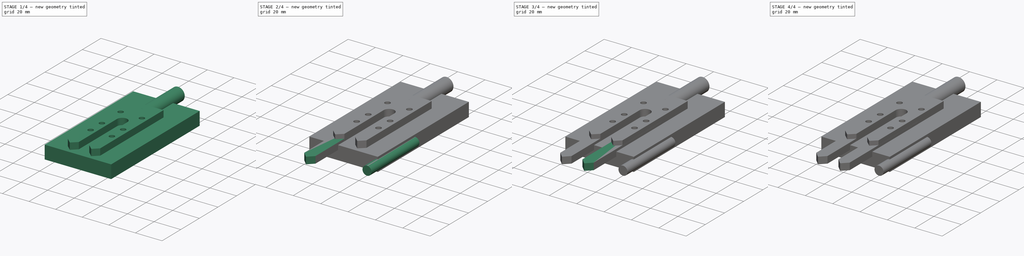
[diagram: build sequence overview — one tinted view per stage of 4, left to right]
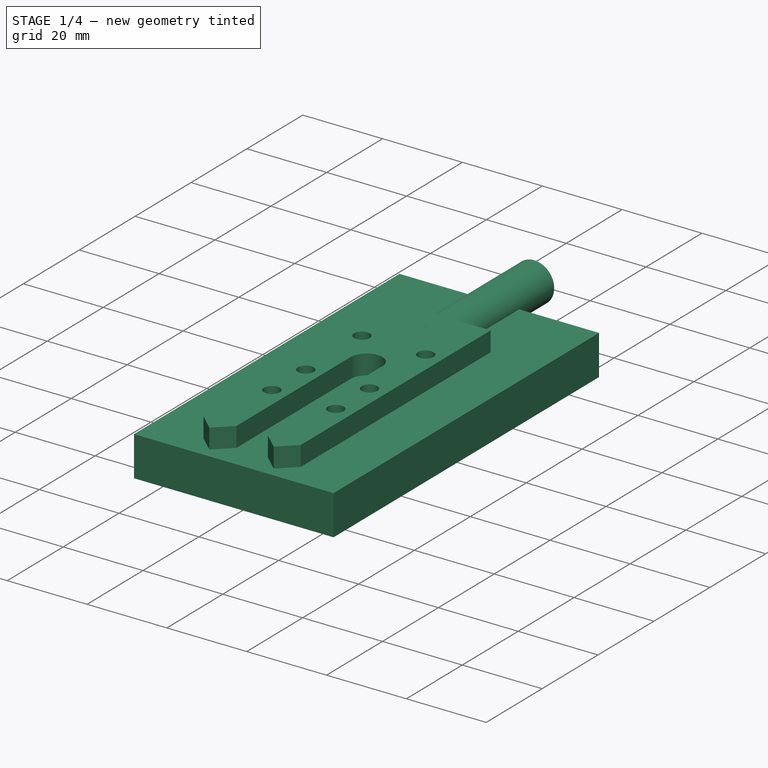
[diagram: stage 1 of 4 — iso view after this stage's code; geometry added in this stage tinted green]
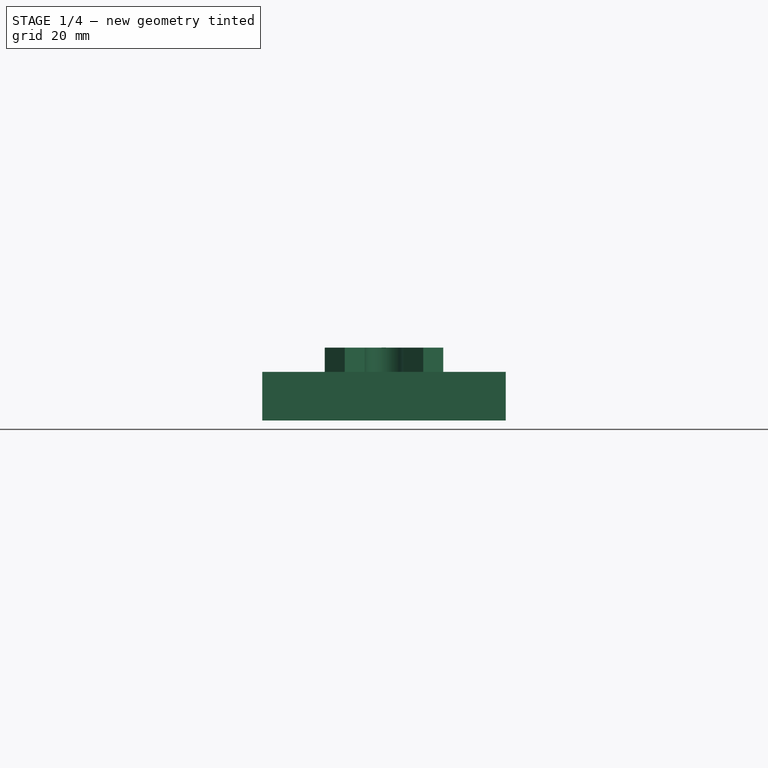
[diagram: stage 1 of 4 — front view after this stage's code; geometry added in this stage tinted green]
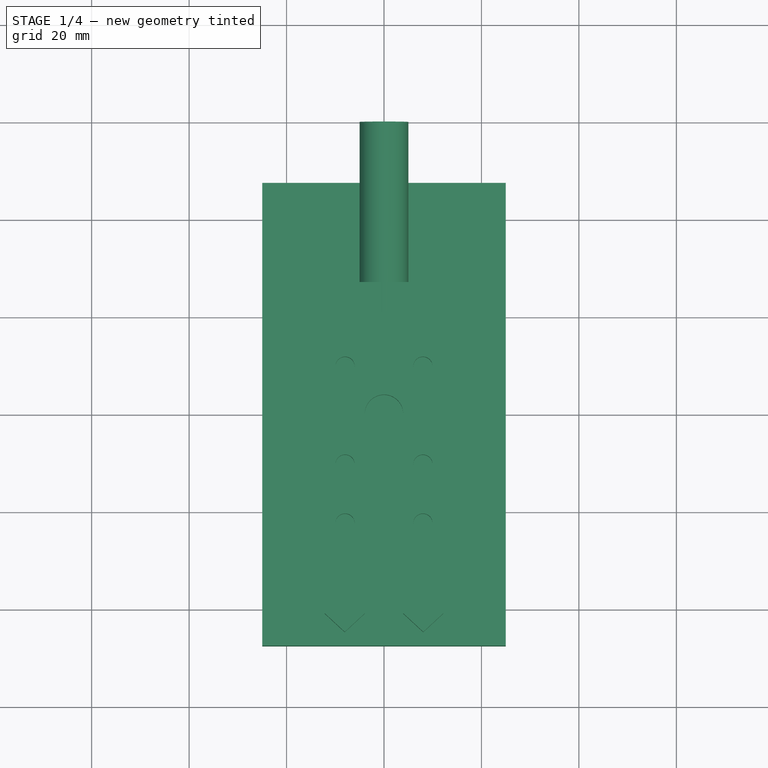
[diagram: stage 1 of 4 — top view after this stage's code; geometry added in this stage tinted green]
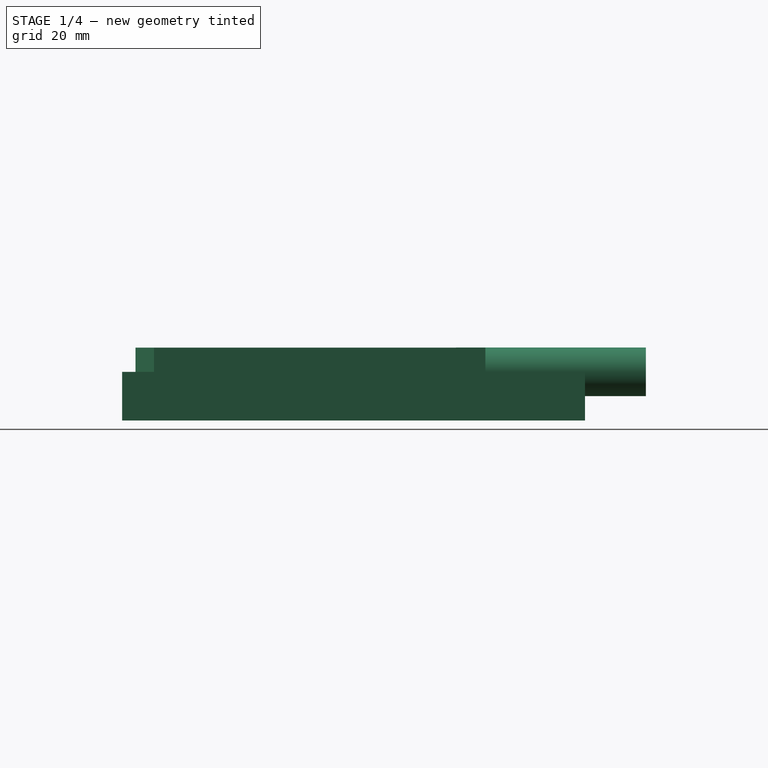
[diagram: stage 1 of 4 — right view after this stage's code; geometry added in this stage tinted green]
FCSTD DOCUMENT  (FreeCAD 0.16R4928 (Git))
Label: soil_sensor_case
License: CreativeCommons Attribution-ShareAlike
LicenseURL: http://creativecommons.org/licenses/by-sa/4.0/
objects: Sketcher::SketchObject×6, PartDesign::Pad×3, PartDesign::Pocket×3, Part::Cylinder×2, Part::Box×1, PartDesign::Chamfer×1, Part::Mirroring×1
note: 23 computed .brp shape members not serialized (recipe doc carries the construction recipe); baked Part::Feature solids carry a one-line shape summary decoded from their .brp

FEATURE [PartDesign::Pad] Pad001
  Length = 10
  Length2 = 100
  Midplane = true
  Sketch = -> Sketch004
  Type = 0
FEATURE [Part::Cylinder] Cylinder001
  Angle = 360
  Height = 39
  Placement = pos=(0,60,5) rot=(1,0,0;1.5708rad)
  Radius = 5
FEATURE [Sketcher::SketchObject] Sketch005
  sketch-geometry (22):
    g0: LineSegment StartX=-12.165 StartY=27.05 StartZ=0 EndX=12.165 EndY=27.05 EndZ=0
    g1: LineSegment StartX=12.165 StartY=27.05 StartZ=0 EndX=12.165 EndY=-40.95 EndZ=0
    g2: LineSegment StartX=12.165 StartY=-40.95 StartZ=0 EndX=8.0575 EndY=-44.7564 EndZ=0
    g3: LineSegment StartX=8.0575 StartY=-44.7564 StartZ=0 EndX=3.95 EndY=-40.95 EndZ=0
    g4: LineSegment StartX=3.95 StartY=-40.95 StartZ=0 EndX=3.95 EndY=-1.41466e-05 EndZ=0
    g5: LineSegment [constr] StartX=3.95 StartY=-1.41466e-05 StartZ=0 EndX=-3.95 EndY=-1.41466e-05 EndZ=0
    g6: LineSegment StartX=-3.95 StartY=-1.41466e-05 StartZ=0 EndX=-3.95 EndY=-40.95 EndZ=0
    g7: LineSegment StartX=-3.95 StartY=-40.95 StartZ=0 EndX=-8.0575 EndY=-44.7564 EndZ=0
    g8: LineSegment StartX=-8.0575 StartY=-44.7564 StartZ=0 EndX=-12.165 EndY=-40.95 EndZ=0
    g9: LineSegment StartX=-12.165 StartY=-40.95 StartZ=0 EndX=-12.165 EndY=27.05 EndZ=0
    g10: ArcOfCircle CenterX=0 CenterY=0 CenterZ=0 NormalX=0 NormalY=0 NormalZ=1 Radius=3.95 StartAngle=6.28318 EndAngle=9.42478
    g11: GeomPoint [constr] X=0 Y=-3.95 Z=0
    g12: LineSegment [constr] StartX=12.165 StartY=-40.95 StartZ=0 EndX=3.95 EndY=-40.95 EndZ=0
    g13: LineSegment [constr] StartX=8.0575 StartY=-44.7564 StartZ=0 EndX=8.0575 EndY=-40.95 EndZ=0
    g14: LineSegment [constr] StartX=-3.95 StartY=-40.95 StartZ=0 EndX=-12.165 EndY=-40.95 EndZ=0
    g15: LineSegment [constr] StartX=-8.0575 StartY=-44.7564 StartZ=0 EndX=-8.0575 EndY=-40.95 EndZ=0
    g16: Circle CenterX=-7.99 CenterY=9.765 CenterZ=0 NormalX=0 NormalY=0 NormalZ=1 Radius=1.975
    g17: Circle CenterX=7.99 CenterY=9.765 CenterZ=0 NormalX=0 NormalY=0 NormalZ=1 Radius=1.975
    g18: Circle CenterX=-7.99 CenterY=-10.335 CenterZ=0 NormalX=0 NormalY=0 NormalZ=1 Radius=1.975
    g19: Circle CenterX=7.99 CenterY=-10.335 CenterZ=0 NormalX=0 NormalY=0 NormalZ=1 Radius=1.975
    g20: Circle CenterX=-7.99 CenterY=-22.435 CenterZ=0 NormalX=0 NormalY=0 NormalZ=1 Radius=1.975
    g21: Circle CenterX=7.99 CenterY=-22.435 CenterZ=0 NormalX=0 NormalY=0 NormalZ=1 Radius=1.975
  constraints (61):
    c: Coincident(g0,g1)
    c: Vertical(g1)
    c: Coincident(g1,g2)
    c: Coincident(g2,g3)
    c: Coincident(g3,g4)
    c: Coincident(g4,g5)
    c: Coincident(g5,g6)
    c: Vertical(g6)
    c: Coincident(g6,g7)
    c: Coincident(g7,g8)
    c: Coincident(g8,g9)
    c: Vertical(g9)
    c: Coincident(g9,g0)
    c: Vertical(g4)
    c: Symmetric(g0,g0,g-2)
    c: Symmetric(g4,g5,g-2)
    c: Equal(g9,g1)
    c: Equal(g4,g6)
    c: Equal(g8,g7)
    c: DistanceX(g0) = 24.33
    c: Coincident(g10,g5)
    c: Coincident(g10,g4)
    c: PointOnObject(g11,g10)
    c: PointOnObject(g11,g-2)
    c: DistanceY(g11,g0) = 31
    c: Radius(g10) = 3.95
    c: DistanceY(g1) = -68
    c: Coincident(g12,g1)
    c: Coincident(g12,g3)
    c: Horizontal(g12)
    c: Coincident(g13,g2)
    c: PointOnObject(g13,g12)
    c: Vertical(g13)
    c: Symmetric(g3,g1,g13)
    c: Equal(g3,g2)
    c: Equal(g2,g7)
    c: Coincident(g14,g6)
    c: Horizontal(g14)
    c: Coincident(g15,g7)
    c: PointOnObject(g15,g14)
    c: Vertical(g15)
    c: Symmetric(g8,g6,g15)
    c: Distance(g2) = 5.6
    c: Coincident(g14,g8)
    c: Coincident(g-1,g10)
    c: Symmetric(g17,g16,g-2)
    c: Radius(g16) = 1.975
    c: Equal(g16,g17)
    c: DistanceX(g17,g0) = 4.175
    c: DistanceY(g0,g16) = -17.285
    c: Equal(g20,g21)
    c: Equal(g21,g18)
    c: Equal(g18,g19)
    c: Equal(g19,g16)
    c: Symmetric(g19,g18,g-2)
    c: Symmetric(g21,g20,g-2)
    c: DistanceX(g18,g19) = 15.98
    c: DistanceX(g21,g20) = -15.98
    c: DistanceY(g16,g18) = -20.1
    c: DistanceY(g18,g20) = -12.1
    c: DistanceX(g5) = -7.9
FEATURE [PartDesign::Pad] Pad002
  Length = 9.96
  Length2 = 100
  Sketch = -> Sketch005
  Type = 0
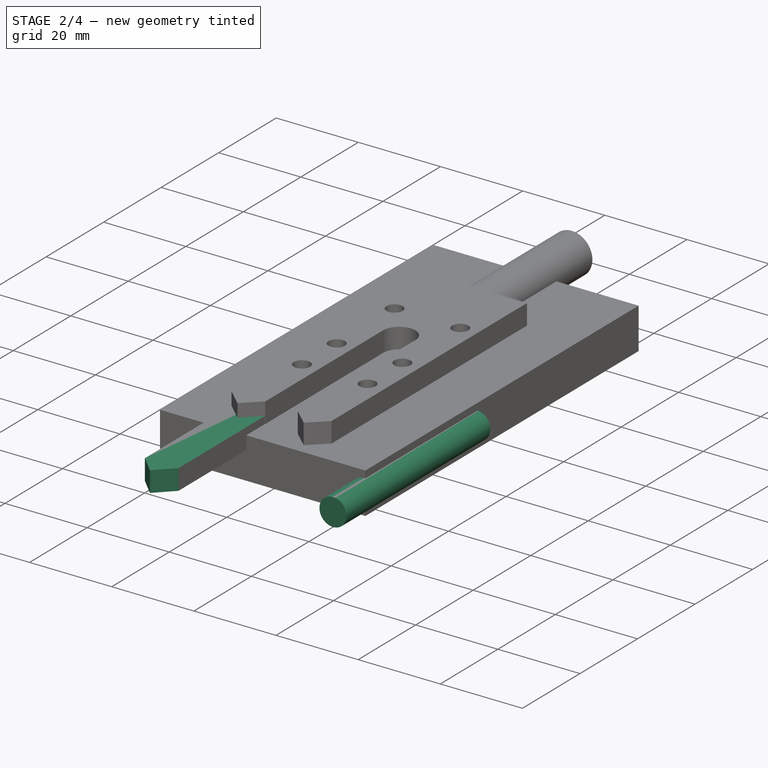
[diagram: stage 2 of 4 — iso view after this stage's code; geometry added in this stage tinted green]
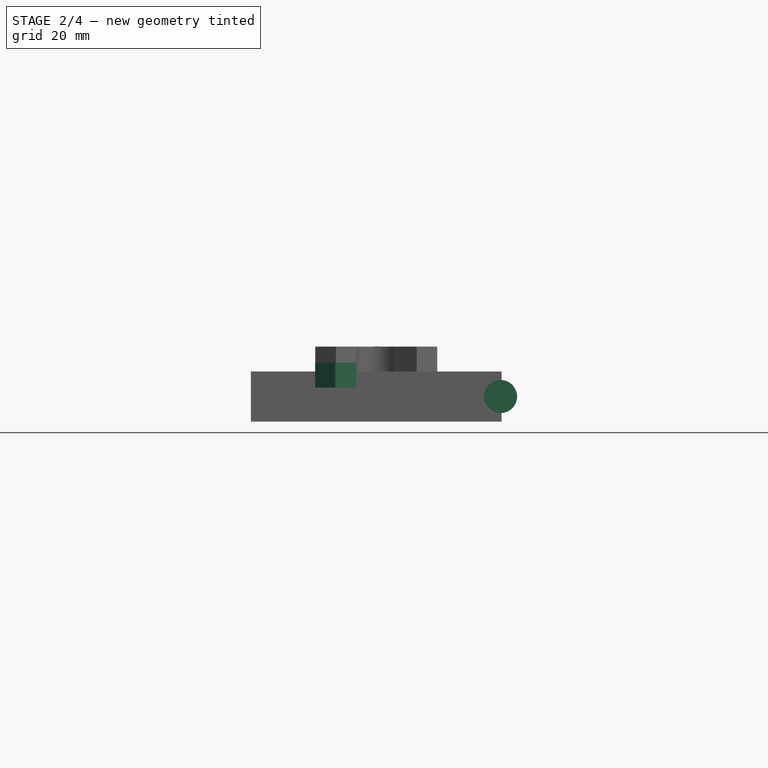
[diagram: stage 2 of 4 — front view after this stage's code; geometry added in this stage tinted green]
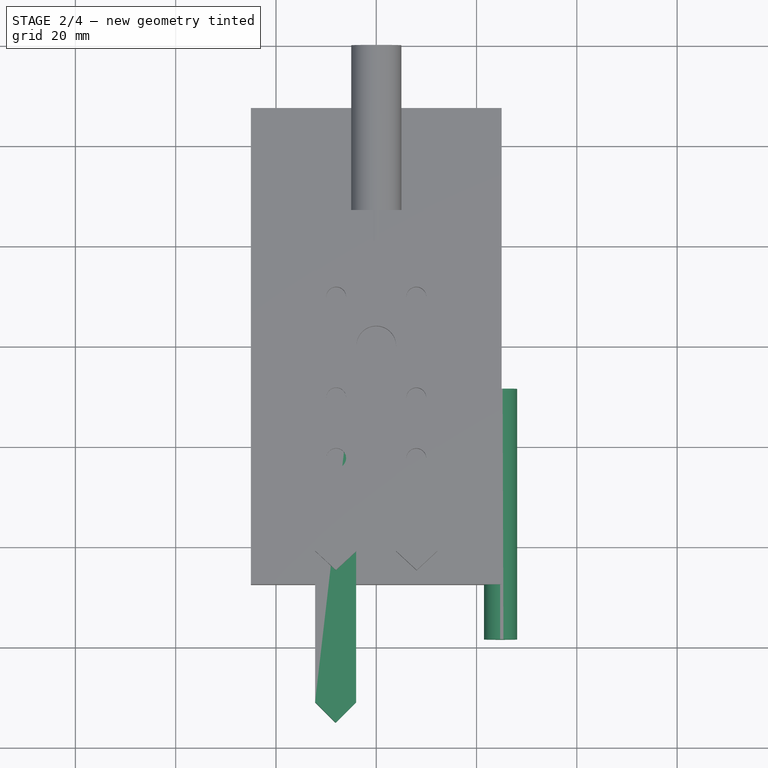
[diagram: stage 2 of 4 — top view after this stage's code; geometry added in this stage tinted green]
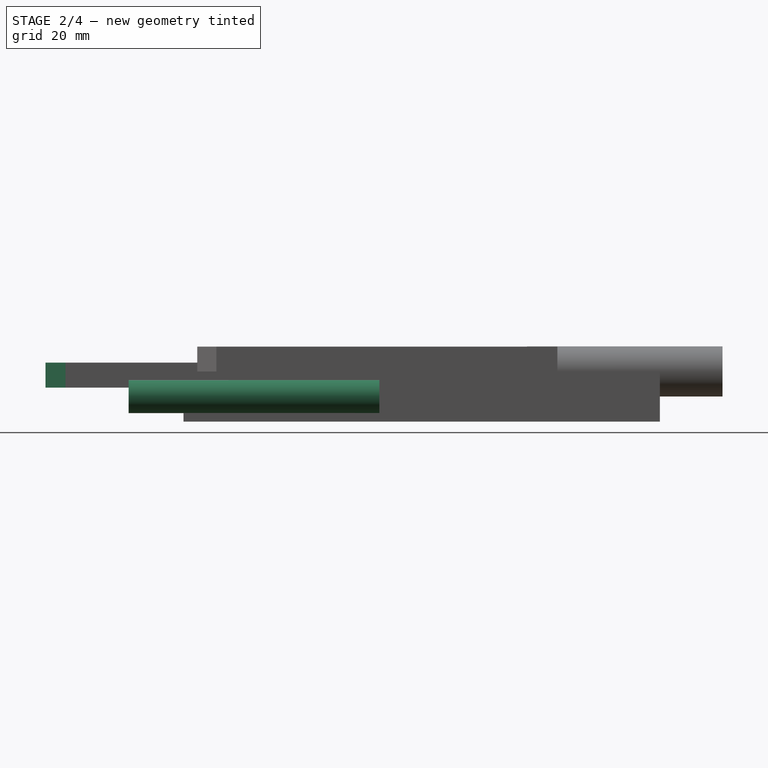
[diagram: stage 2 of 4 — right view after this stage's code; geometry added in this stage tinted green]
FEATURE [Part::Box] Box  label="Cube"
  Height = 5
  Length = 8.2
  Placement = pos=(-12.2039,-75.0377,1.77091) rot=(0,0,1;0rad)
  Width = 75
FEATURE [PartDesign::Chamfer] Chamfer
  Base = -> Box [Edge5,Edge1]
  Placement = pos=(-12.2039,-75.0377,1.77091) rot=(0,0,1;0rad)
  Size = 4
FEATURE [Sketcher::SketchObject] Sketch004
  sketch-geometry (4):
    g0: LineSegment StartX=-25 StartY=47.5 StartZ=0 EndX=25 EndY=47.5 EndZ=0
    g1: LineSegment StartX=25 StartY=47.5 StartZ=0 EndX=25 EndY=-47.5 EndZ=0
    g2: LineSegment StartX=25 StartY=-47.5 StartZ=0 EndX=-25 EndY=-47.5 EndZ=0
    g3: LineSegment StartX=-25 StartY=-47.5 StartZ=0 EndX=-25 EndY=47.5 EndZ=0
  constraints (11):
    c: Coincident(g0,g1)
    c: Coincident(g1,g2)
    c: Coincident(g2,g3)
    c: Coincident(g3,g0)
    c: Horizontal(g0)
    c: Horizontal(g2)
    c: Vertical(g1)
    c: Vertical(g3)
    c: Symmetric(g1,g0,g-1)
    c: DistanceY(g1) = -95
    c: DistanceX(g0) = 50
FEATURE [Part::Cylinder] Cylinder
  Angle = 360
  Height = 50
  Placement = pos=(24.7863,-8.4453,3.51125e-06) rot=(1,0,0;1.5708rad)
  Radius = 3.3
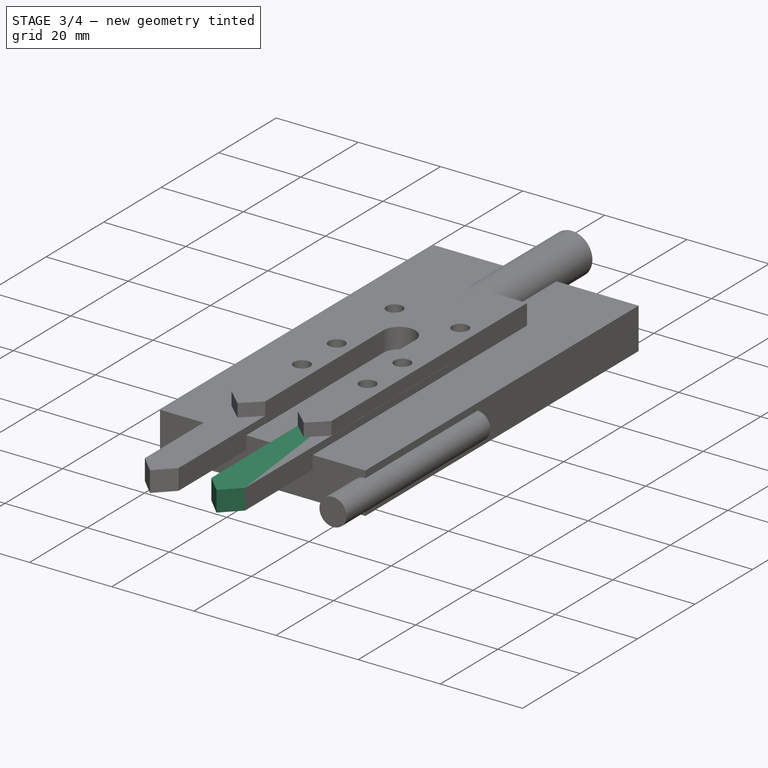
[diagram: stage 3 of 4 — iso view after this stage's code; geometry added in this stage tinted green]
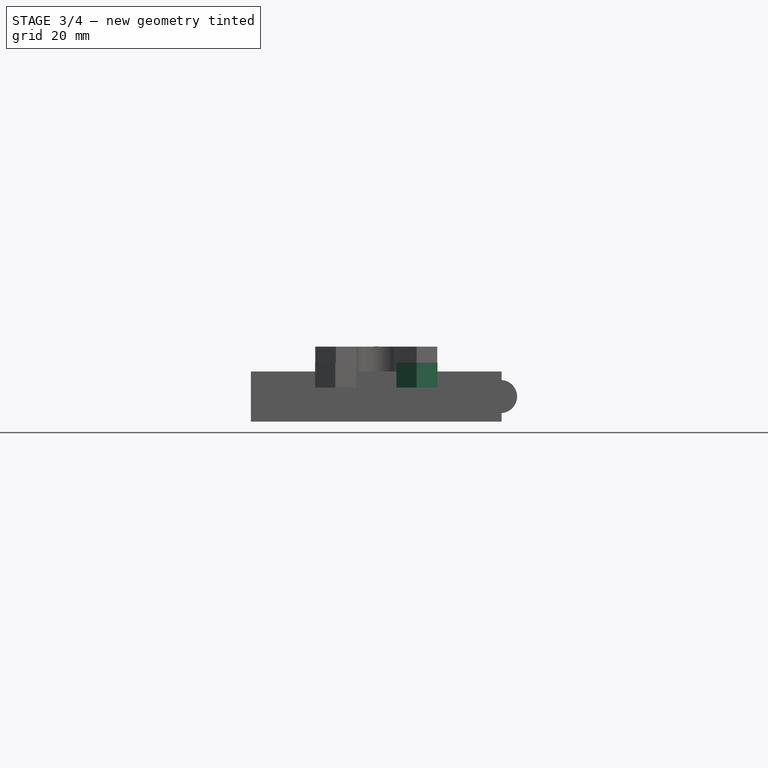
[diagram: stage 3 of 4 — front view after this stage's code; geometry added in this stage tinted green]
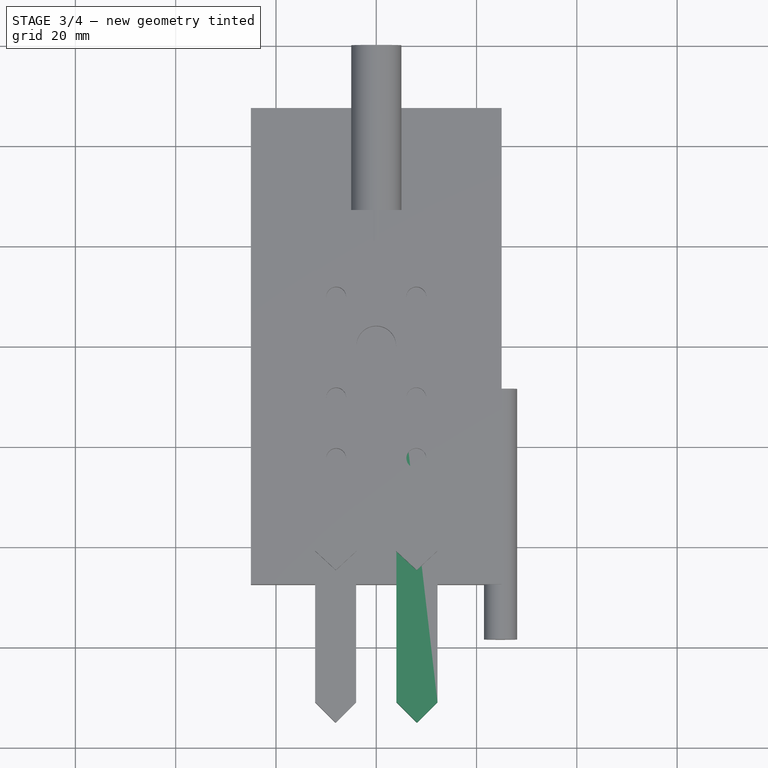
[diagram: stage 3 of 4 — top view after this stage's code; geometry added in this stage tinted green]
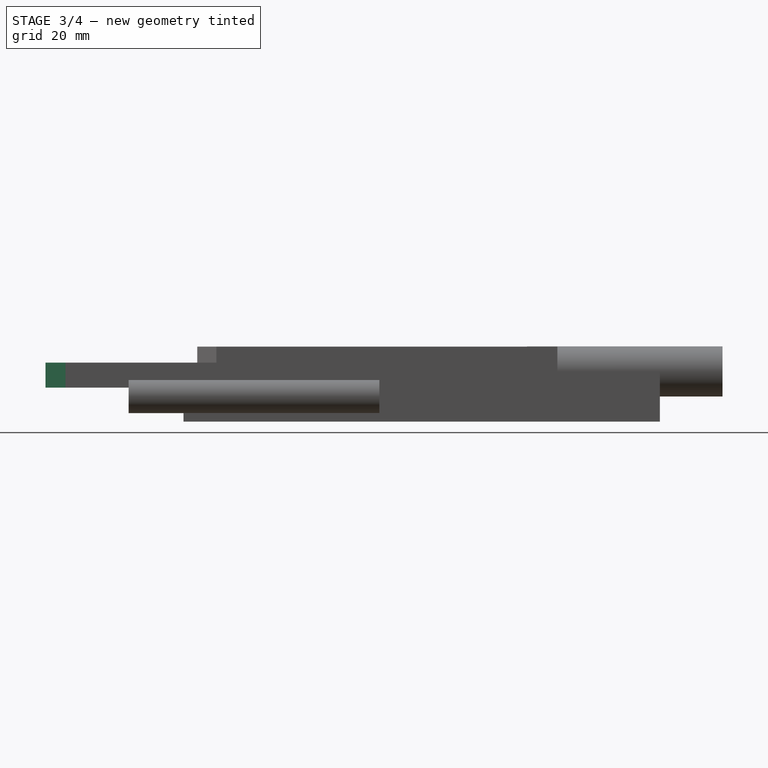
[diagram: stage 3 of 4 — right view after this stage's code; geometry added in this stage tinted green]
FEATURE [Part::Mirroring] Part__Mirroring  label="Chamfer (Mirror #1)"
  Base = (0,0,0)
  Normal = (1,0,0)
  Source = -> Chamfer
FEATURE [Sketcher::SketchObject] Sketch003
  Placement = pos=(-12.2039,-75.0377,1.77091) rot=(1,0,0;3.14159rad)
  Support = -> Chamfer [Face5]
  sketch-geometry (3):
    g0: Circle CenterX=4.2 CenterY=-52.6 CenterZ=0 NormalX=0 NormalY=0 NormalZ=1 Radius=2
    g1: Circle CenterX=4.2 CenterY=-64.7 CenterZ=0 NormalX=0 NormalY=0 NormalZ=1 Radius=2
    g2: LineSegment [constr] StartX=4.2 StartY=-64.7 StartZ=0 EndX=4.2 EndY=-52.6 EndZ=0
  constraints (8):
    c: Coincident(g2,g1)
    c: Coincident(g2,g0)
    c: Vertical(g2)
    c: Equal(g1,g0)
    c: Radius(g0) = 2
    c: DistanceY(g2) = 12.1
    c: DistanceX(g1) = 4.2
    c: DistanceY(g1) = -64.7
FEATURE [PartDesign::Pocket] Pocket002
  Length = 5
  Placement = pos=(-12.2039,-75.0377,1.77091) rot=(0,0,1;0rad)
  Sketch = -> Sketch003
  Type = 0
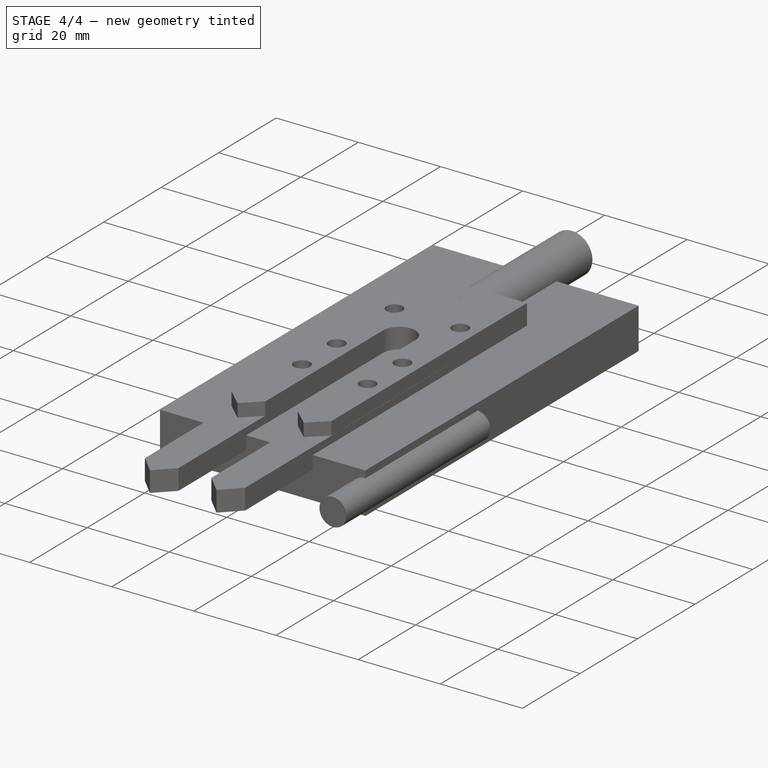
[diagram: stage 4 of 4 — iso view after this stage's code; geometry added in this stage tinted green]
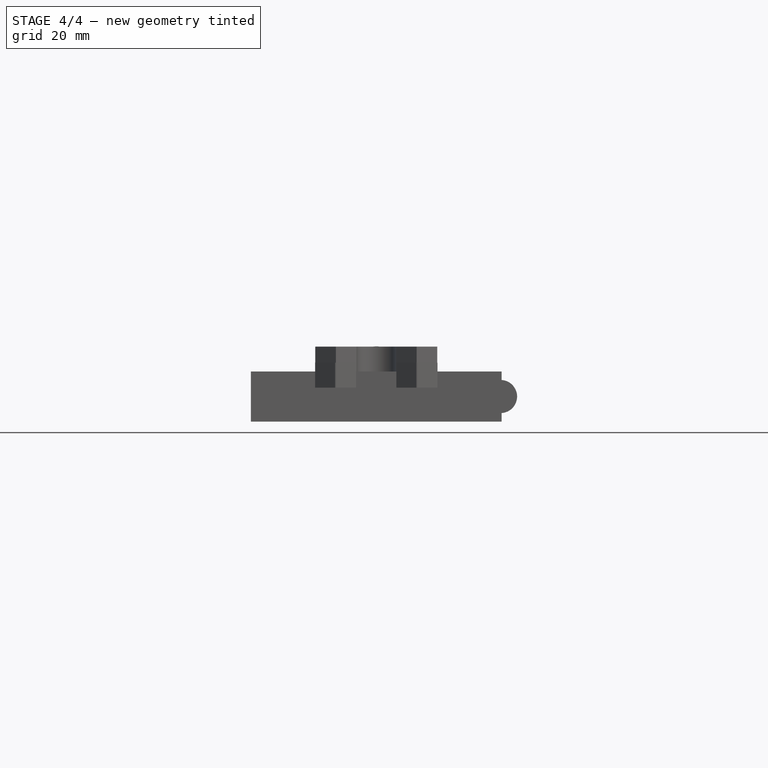
[diagram: stage 4 of 4 — front view after this stage's code; geometry added in this stage tinted green]
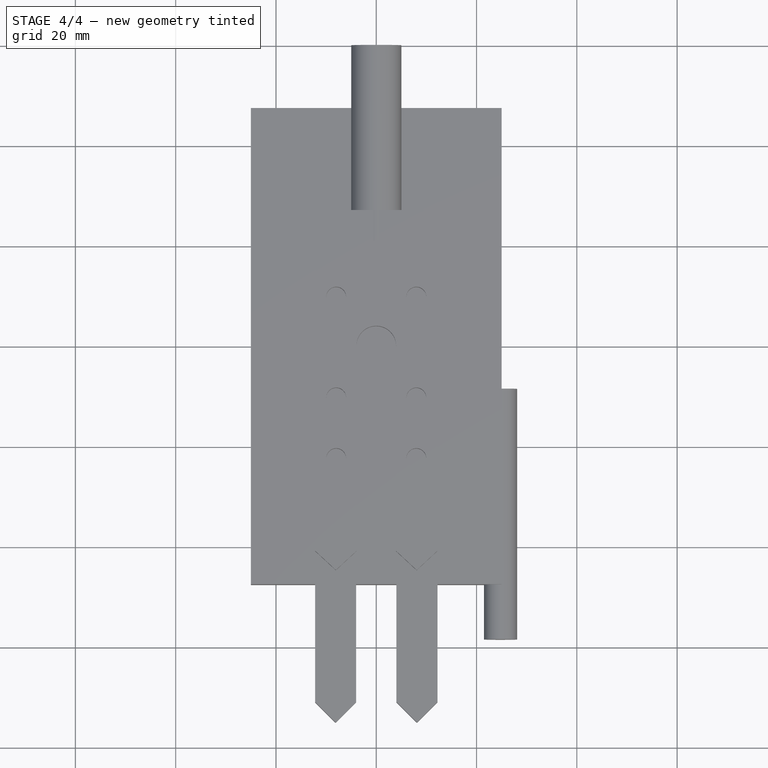
[diagram: stage 4 of 4 — top view after this stage's code; geometry added in this stage tinted green]
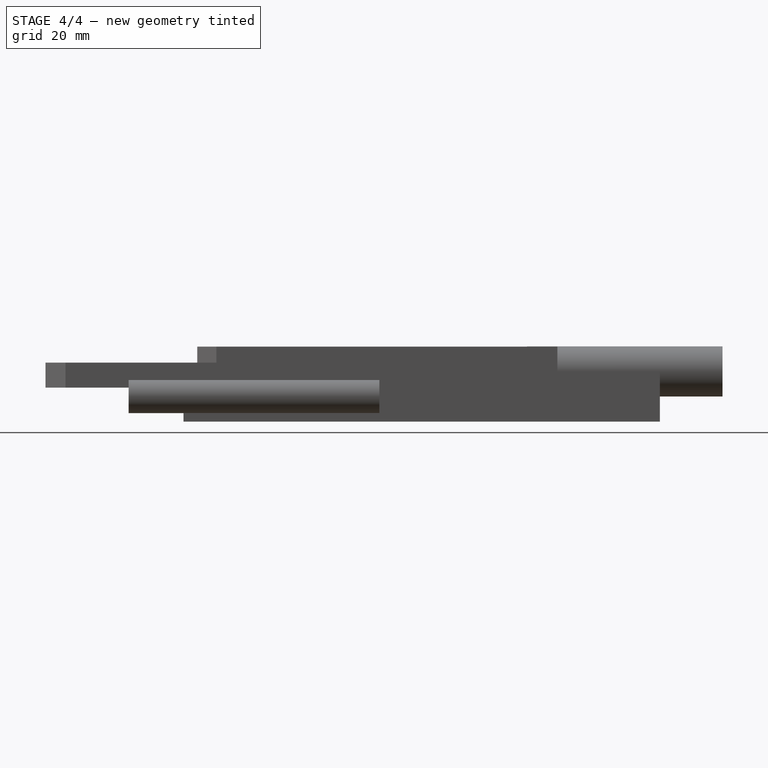
[diagram: stage 4 of 4 — right view after this stage's code; geometry added in this stage tinted green]
FEATURE [Sketcher::SketchObject] Sketch
  sketch-geometry (22):
    g0: LineSegment StartX=-12.165 StartY=27.05 StartZ=0 EndX=12.165 EndY=27.05 EndZ=0
    g1: LineSegment StartX=12.165 StartY=27.05 StartZ=0 EndX=12.165 EndY=-40.95 EndZ=0
    g2: LineSegment StartX=12.165 StartY=-40.95 StartZ=0 EndX=8.0575 EndY=-44.7564 EndZ=0
    g3: LineSegment StartX=8.0575 StartY=-44.7564 StartZ=0 EndX=3.95 EndY=-40.95 EndZ=0
    g4: LineSegment StartX=3.95 StartY=-40.95 StartZ=0 EndX=3.95 EndY=-1.41466e-05 EndZ=0
    g5: LineSegment [constr] StartX=3.95 StartY=-1.41466e-05 StartZ=0 EndX=-3.95 EndY=-1.41466e-05 EndZ=0
    g6: LineSegment StartX=-3.95 StartY=-1.41466e-05 StartZ=0 EndX=-3.95 EndY=-40.95 EndZ=0
    g7: LineSegment StartX=-3.95 StartY=-40.95 StartZ=0 EndX=-8.0575 EndY=-44.7564 EndZ=0
    g8: LineSegment StartX=-8.0575 StartY=-44.7564 StartZ=0 EndX=-12.165 EndY=-40.95 EndZ=0
    g9: LineSegment StartX=-12.165 StartY=-40.95 StartZ=0 EndX=-12.165 EndY=27.05 EndZ=0
    g10: ArcOfCircle CenterX=0 CenterY=0 CenterZ=0 NormalX=0 NormalY=0 NormalZ=1 Radius=3.95 StartAngle=6.28318 EndAngle=9.42478
    g11: GeomPoint [constr] X=0 Y=-3.95 Z=0
    g12: LineSegment [constr] StartX=12.165 StartY=-40.95 StartZ=0 EndX=3.95 EndY=-40.95 EndZ=0
    g13: LineSegment [constr] StartX=8.0575 StartY=-44.7564 StartZ=0 EndX=8.0575 EndY=-40.95 EndZ=0
    g14: LineSegment [constr] StartX=-3.95 StartY=-40.95 StartZ=0 EndX=-12.165 EndY=-40.95 EndZ=0
    g15: LineSegment [constr] StartX=-8.0575 StartY=-44.7564 StartZ=0 EndX=-8.0575 EndY=-40.95 EndZ=0
    g16: Circle CenterX=-7.99 CenterY=9.765 CenterZ=0 NormalX=0 NormalY=0 NormalZ=1 Radius=1.975
    g17: Circle CenterX=7.99 CenterY=9.765 CenterZ=0 NormalX=0 NormalY=0 NormalZ=1 Radius=1.975
    g18: Circle CenterX=-7.99 CenterY=-10.335 CenterZ=0 NormalX=0 NormalY=0 NormalZ=1 Radius=1.975
    g19: Circle CenterX=7.99 CenterY=-10.335 CenterZ=0 NormalX=0 NormalY=0 NormalZ=1 Radius=1.975
    g20: Circle CenterX=-7.99 CenterY=-22.435 CenterZ=0 NormalX=0 NormalY=0 NormalZ=1 Radius=1.975
    g21: Circle CenterX=7.99 CenterY=-22.435 CenterZ=0 NormalX=0 NormalY=0 NormalZ=1 Radius=1.975
  constraints (61):
    c: Coincident(g0,g1)
    c: Vertical(g1)
    c: Coincident(g1,g2)
    c: Coincident(g2,g3)
    c: Coincident(g3,g4)
    c: Coincident(g4,g5)
    c: Coincident(g5,g6)
    c: Vertical(g6)
    c: Coincident(g6,g7)
    c: Coincident(g7,g8)
    c: Coincident(g8,g9)
    c: Vertical(g9)
    c: Coincident(g9,g0)
    c: Vertical(g4)
    c: Symmetric(g0,g0,g-2)
    c: Symmetric(g4,g5,g-2)
    c: Equal(g9,g1)
    c: Equal(g4,g6)
    c: Equal(g8,g7)
    c: DistanceX(g0) = 24.33
    c: Coincident(g10,g5)
    c: Coincident(g10,g4)
    c: PointOnObject(g11,g10)
    c: PointOnObject(g11,g-2)
    c: DistanceY(g11,g0) = 31
    c: Radius(g10) = 3.95
    c: DistanceY(g1) = -68
    c: Coincident(g12,g1)
    c: Coincident(g12,g3)
    c: Horizontal(g12)
    c: Coincident(g13,g2)
    c: PointOnObject(g13,g12)
    c: Vertical(g13)
    c: Symmetric(g3,g1,g13)
    c: Equal(g3,g2)
    c: Equal(g2,g7)
    c: Coincident(g14,g6)
    c: Horizontal(g14)
    c: Coincident(g15,g7)
    c: PointOnObject(g15,g14)
    c: Vertical(g15)
    c: Symmetric(g8,g6,g15)
    c: Distance(g2) = 5.6
    c: Coincident(g14,g8)
    c: Coincident(g-1,g10)
    c: Symmetric(g17,g16,g-2)
    c: Radius(g16) = 1.975
    c: Equal(g16,g17)
    c: DistanceX(g17,g0) = 4.175
    c: DistanceY(g0,g16) = -17.285
    c: Equal(g20,g21)
    c: Equal(g21,g18)
    c: Equal(g18,g19)
    c: Equal(g19,g16)
    c: Symmetric(g19,g18,g-2)
    c: Symmetric(g21,g20,g-2)
    c: DistanceX(g18,g19) = 15.98
    c: DistanceX(g21,g20) = -15.98
    c: DistanceY(g16,g18) = -20.1
    c: DistanceY(g18,g20) = -12.1
    c: DistanceX(g5) = -7.9
FEATURE [PartDesign::Pad] Pad
  Length = 9.96
  Length2 = 100
  Sketch = -> Sketch
  Type = 0
FEATURE [Sketcher::SketchObject] Sketch001
  Placement = pos=(0,0,9.96) rot=(0,0,1;0rad)
  Support = -> Pad [Face18]
  sketch-geometry (4):
    g0: LineSegment StartX=-17.5 StartY=0 StartZ=0 EndX=17.5 EndY=0 EndZ=0
    g1: LineSegment StartX=17.5 StartY=0 StartZ=0 EndX=17.5 EndY=-45 EndZ=0
    g2: LineSegment StartX=17.5 StartY=-45 StartZ=0 EndX=-17.5 EndY=-45 EndZ=0
    g3: LineSegment StartX=-17.5 StartY=-45 StartZ=0 EndX=-17.5 EndY=0 EndZ=0
  constraints (11):
    c: Coincident(g0,g1)
    c: Coincident(g1,g2)
    c: Coincident(g2,g3)
    c: Coincident(g3,g0)
    c: Horizontal(g0)
    c: Horizontal(g2)
    c: Vertical(g1)
    c: Vertical(g3)
    c: Symmetric(g0,g0,g-1)
    c: DistanceX(g2) = -35
    c: DistanceY(g1) = -45
FEATURE [PartDesign::Pocket] Pocket
  Length = 8.26
  Sketch = -> Sketch001
  Type = 0
FEATURE [Sketcher::SketchObject] Sketch002
  Placement = pos=(0,0,1.77091) rot=(1,0,0;3.14159rad)
  Support = -> Part__Mirroring [Face5]
  sketch-geometry (3):
    g0: Circle CenterX=8 CenterY=22.4 CenterZ=0 NormalX=0 NormalY=0 NormalZ=1 Radius=2
    g1: Circle CenterX=8 CenterY=10.3 CenterZ=0 NormalX=0 NormalY=0 NormalZ=1 Radius=2
    g2: LineSegment [constr] StartX=8 StartY=10.3 StartZ=0 EndX=8 EndY=22.4 EndZ=0
  constraints (8):
    c: Coincident(g2,g0)
    c: Coincident(g2,g1)
    c: Vertical(g2)
    c: Equal(g1,g0)
    c: Radius(g1) = 2
    c: DistanceX(g1) = 8
    c: DistanceY(g1) = 10.3
    c: DistanceY(g2) = 12.1
FEATURE [PartDesign::Pocket] Pocket001
  Length = 5
  Sketch = -> Sketch002
  Type = 0
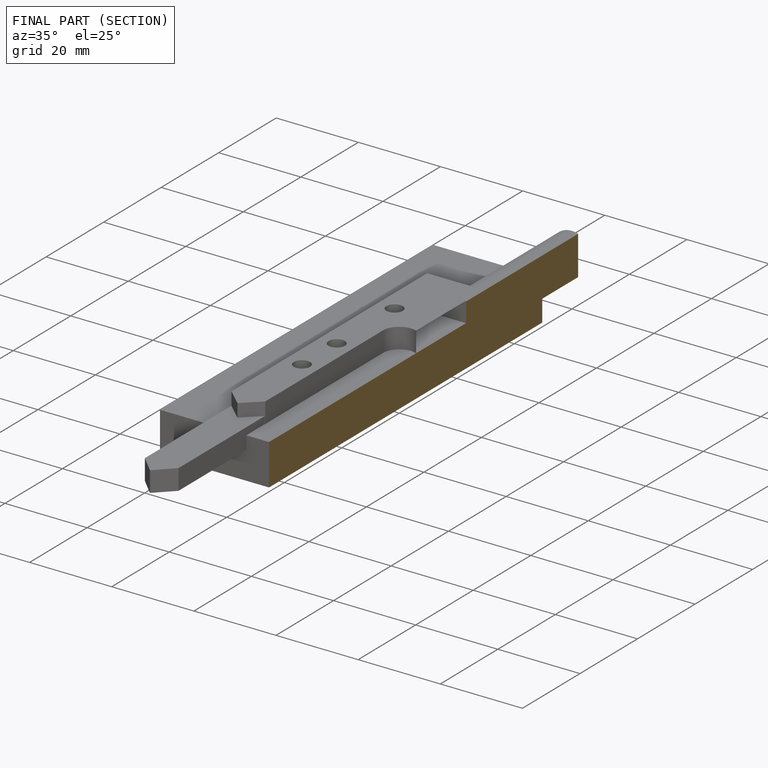
[diagram: finished part — half-section view (interior)]
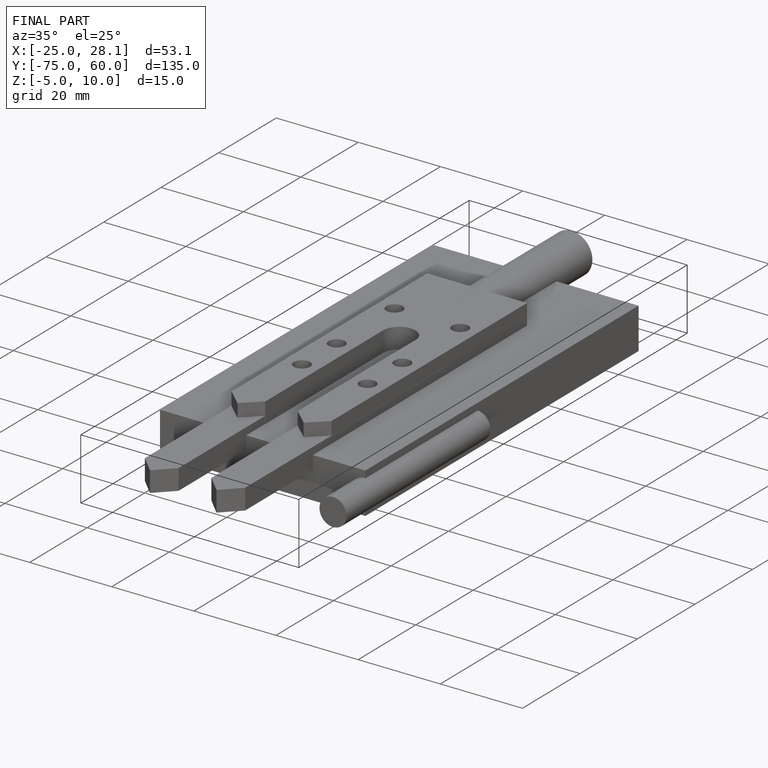
[diagram: finished part — iso view with bounding-box wireframe]
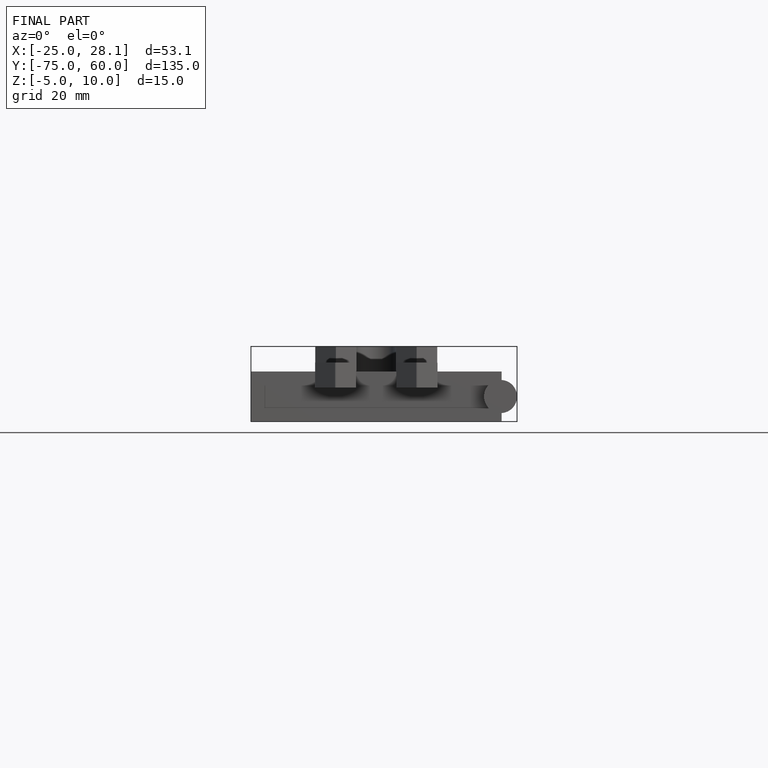
[diagram: finished part — front view with bounding-box wireframe]
